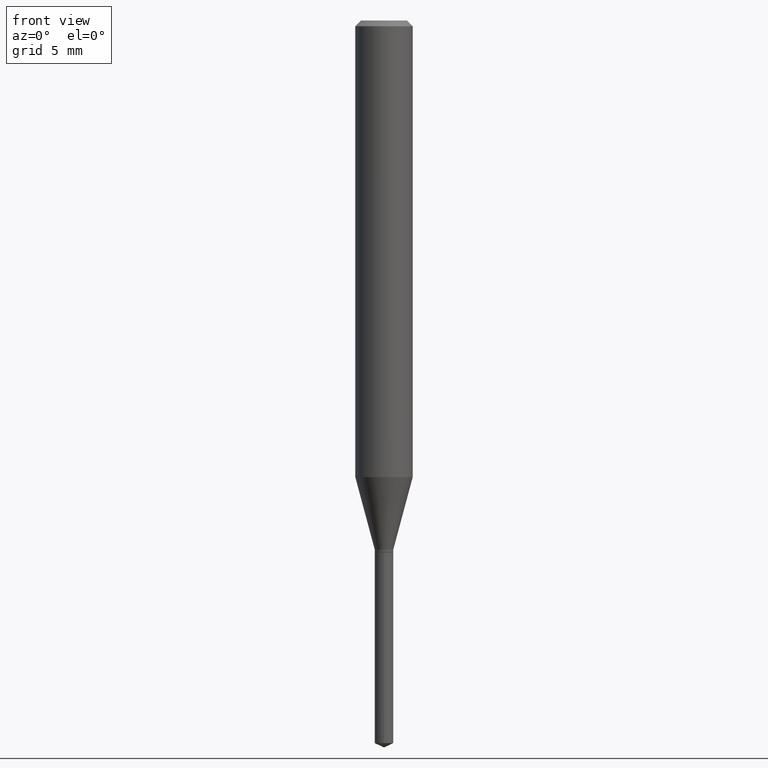
[diagram: clean part render]
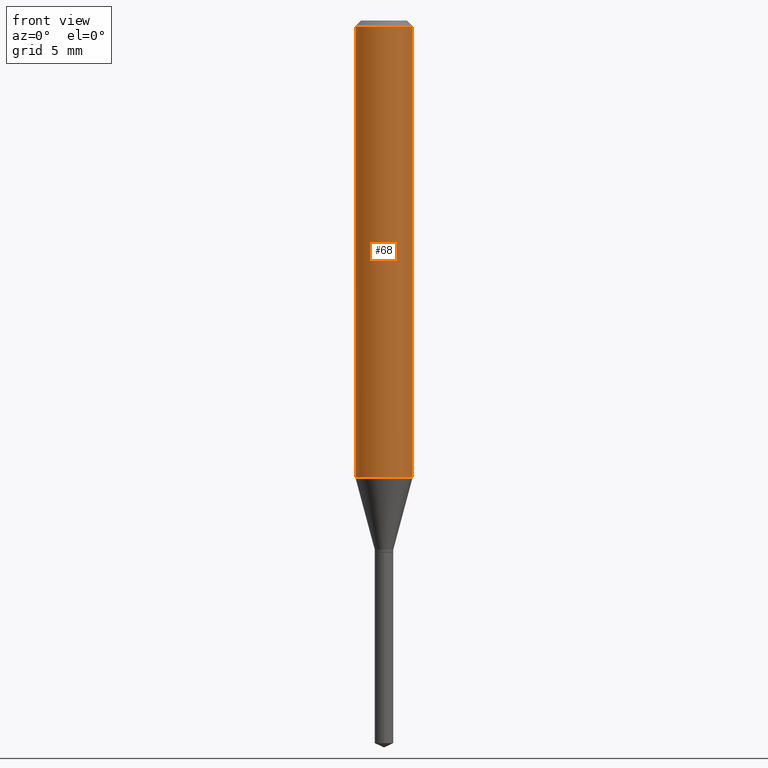
[diagram: same view with one face highlighted and labeled with its STEP entity id]
A machine part, front view. The second image highlights one B-rep face of the part: STEP entity #68.
In plain terms, the highlighted cylindrical surface (edge-blend (fillet) strip) has radius 1.4999 mm, axis along (-0, 0, 1).
Its self-contained STEP definition (entity closure, byte-faithful):
#5 = VERTEX_POINT ( 'NONE', #349 ) ;
#32 = EDGE_CURVE ( 'NONE', #109, #5, #133, .T. ) ;
#33 = LINE ( 'NONE', #251, #446 ) ;
#34 = EDGE_LOOP ( 'NONE', ( #388, #219, #454, #300 ) ) ;
#42 = AXIS2_PLACEMENT_3D ( 'NONE', #376, #299, #445 ) ;
#60 = LINE ( 'NONE', #205, #407 ) ;
#68 = ADVANCED_FACE ( 'NONE', ( #367 ), #240, .T. ) ;
#89 = DIRECTION ( 'NONE',  ( -2.445468806185136597E-29, 3.491481338843145583E-15, 1.000000000000000000 ) ) ;
#109 = VERTEX_POINT ( 'NONE', #168 ) ;
#121 = DIRECTION ( 'NONE',  ( 1.000000000000000000, -6.982962677686267499E-15, 0.000000000000000000 ) ) ;
#133 = CIRCLE ( 'NONE', #196, 0.05905000000000010935 ) ;
#135 = DIRECTION ( 'NONE',  ( -2.445468806185136877E-29, 3.491481338843145188E-15, 1.000000000000000000 ) ) ;
#139 = AXIS2_PLACEMENT_3D ( 'NONE', #434, #468, #475 ) ;
#168 = CARTESIAN_POINT ( 'NONE',  ( -0.05905000000000010241, -2.861385485543939476E-15, -0.9397045702376232157 ) ) ;
#185 = EDGE_CURVE ( 'NONE', #192, #267, #356, .T. ) ;
#192 = VERTEX_POINT ( 'NONE', #402 ) ;
#195 = EDGE_CURVE ( 'NONE', #109, #192, #33, .T. ) ;
#196 = AXIS2_PLACEMENT_3D ( 'NONE', #429, #89, #121 ) ;
#205 = CARTESIAN_POINT ( 'NONE',  ( 0.05905000000000005383, -4.123439461173744271E-16, 2.879382386107502672E-30 ) ) ;
#219 = ORIENTED_EDGE ( 'NONE', *, *, #32, .T. ) ;
#240 = CYLINDRICAL_SURFACE ( 'NONE', #139, 0.05905000000000005383 ) ;
#251 = CARTESIAN_POINT ( 'NONE',  ( -0.05905000000000005383, 4.195754854663395423E-16, -2.904631170795524694E-30 ) ) ;
#267 = VERTEX_POINT ( 'NONE', #380 ) ;
#299 = DIRECTION ( 'NONE',  ( -2.445468806185136597E-29, 3.491481338843145583E-15, 1.000000000000000000 ) ) ;
#300 = ORIENTED_EDGE ( 'NONE', *, *, #185, .F. ) ;
#328 = DIRECTION ( 'NONE',  ( -2.445468806185136877E-29, 3.491481338843145188E-15, 1.000000000000000000 ) ) ;
#349 = CARTESIAN_POINT ( 'NONE',  ( 0.05905000000000010241, -3.693304917127654284E-15, -0.9397045702376232157 ) ) ;
#356 = CIRCLE ( 'NONE', #42, 0.05904999999999999832 ) ;
#367 = FACE_OUTER_BOUND ( 'NONE', #34, .T. ) ;
#376 = CARTESIAN_POINT ( 'NONE',  ( 2.888098660104663328E-31, -4.123439461173779030E-17, -0.01181000000000006871 ) ) ;
#380 = CARTESIAN_POINT ( 'NONE',  ( 0.05904999999999999832, -4.535783407291118600E-16, -0.01181000000000006871 ) ) ;
#388 = ORIENTED_EDGE ( 'NONE', *, *, #195, .F. ) ;
#402 = CARTESIAN_POINT ( 'NONE',  ( -0.05904999999999999832, -1.241522197344668659E-15, -0.01181000000000006871 ) ) ;
#407 = VECTOR ( 'NONE', #328, 39.37007874015748143 ) ;
#429 = CARTESIAN_POINT ( 'NONE',  ( 2.298018213545717288E-29, -3.280960971010279363E-15, -0.9397045702376232157 ) ) ;
#434 = CARTESIAN_POINT ( 'NONE',  ( 0.000000000000000000, 0.000000000000000000, 0.000000000000000000 ) ) ;
#445 = DIRECTION ( 'NONE',  ( 1.000000000000000000, -6.982962677686266711E-15, 0.000000000000000000 ) ) ;
#446 = VECTOR ( 'NONE', #135, 39.37007874015748143 ) ;
#454 = ORIENTED_EDGE ( 'NONE', *, *, #461, .T. ) ;
#461 = EDGE_CURVE ( 'NONE', #5, #267, #60, .T. ) ;
#468 = DIRECTION ( 'NONE',  ( -2.445468806185136597E-29, 3.491481338843145583E-15, 1.000000000000000000 ) ) ;
#475 = DIRECTION ( 'NONE',  ( 1.000000000000000000, -6.982962677686266711E-15, 4.876176775795935793E-29 ) ) ;